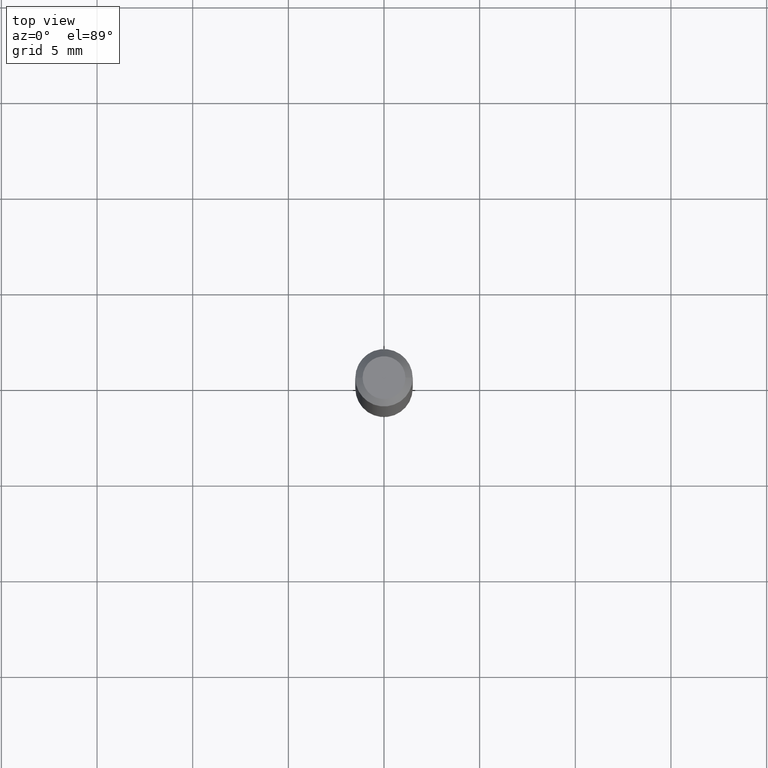
[diagram: clean part render]
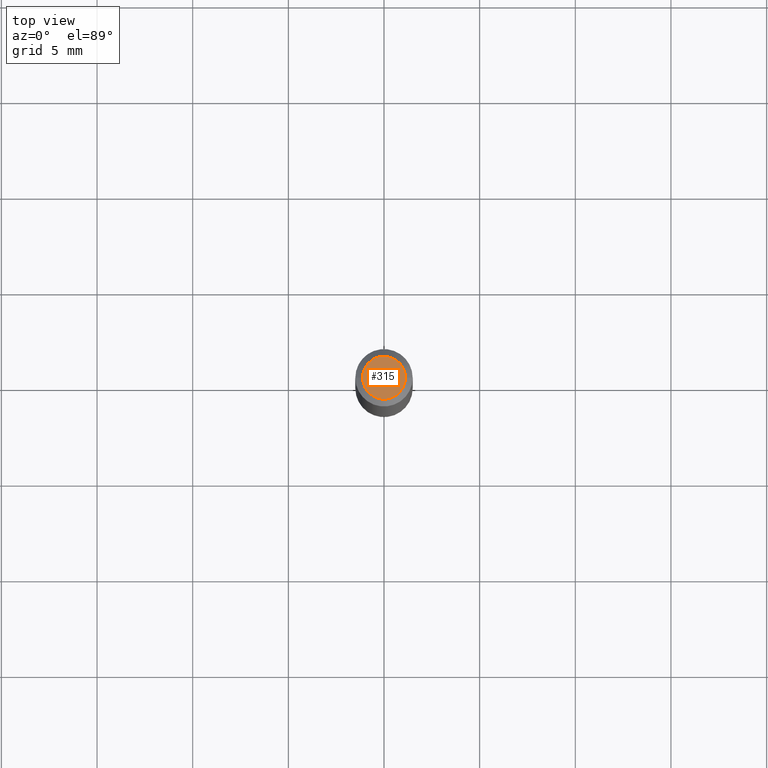
[diagram: same view with one face highlighted and labeled with its STEP entity id]
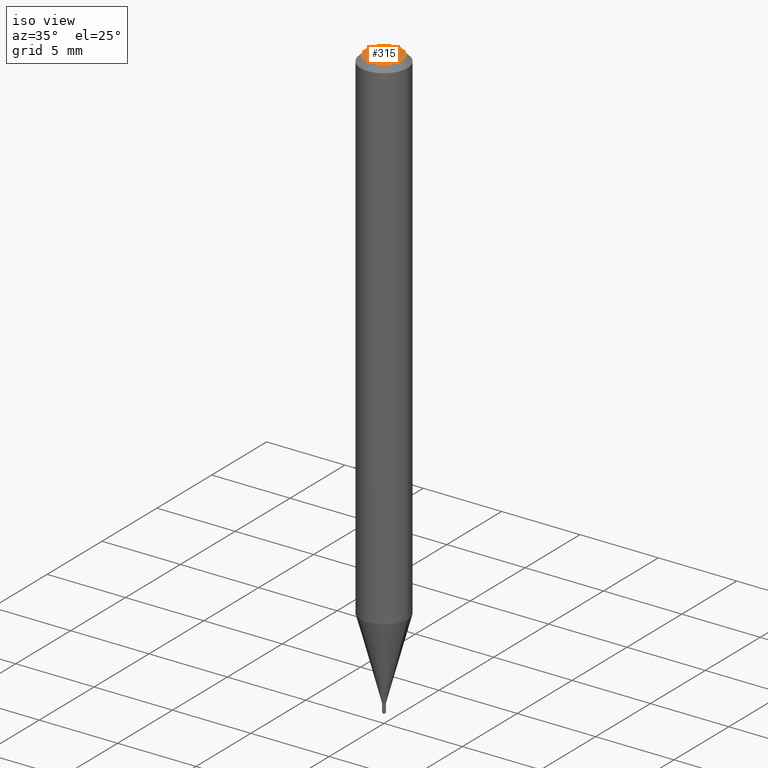
[diagram: same view with one face highlighted and labeled with its STEP entity id]
A machine part, top view. The second image highlights one B-rep face of the part: STEP entity #315.
A second angle (iso view) of the same face is appended — the face is thin or edge-on in the first view.
In plain terms, the highlighted planar face has unit normal (0, -0, -1).
Its self-contained STEP definition (entity closure, byte-faithful):
#27 = CARTESIAN_POINT ( 'NONE',  ( 1.968655146103496235E-45, -2.810717800960375713E-31, -8.050215734195126909E-17 ) ) ;
#47 = DIRECTION ( 'NONE',  ( 1.000000000000000000, -6.982962677686265922E-15, 4.888540261209747396E-29 ) ) ;
#49 = PLANE ( 'NONE',  #377 ) ;
#166 = VERTEX_POINT ( 'NONE', #312 ) ;
#187 = DIRECTION ( 'NONE',  ( -2.445468806185136597E-29, 3.491481338843145583E-15, 1.000000000000000000 ) ) ;
#191 = EDGE_CURVE ( 'NONE', #462, #166, #309, .T. ) ;
#211 = DIRECTION ( 'NONE',  ( 2.438088387897960049E-29, -3.491481338843145188E-15, -1.000000000000000000 ) ) ;
#222 = FACE_OUTER_BOUND ( 'NONE', #489, .T. ) ;
#252 = ORIENTED_EDGE ( 'NONE', *, *, #290, .T. ) ;
#275 = DIRECTION ( 'NONE',  ( 1.000000000000000000, -6.982962677686265922E-15, 4.888540261209747396E-29 ) ) ;
#280 = CARTESIAN_POINT ( 'NONE',  ( 0.04404999999999999888, -3.798447818264463530E-16, -8.050215734194887786E-17 ) ) ;
#290 = EDGE_CURVE ( 'NONE', #166, #462, #507, .T. ) ;
#302 = CARTESIAN_POINT ( 'NONE',  ( 3.075995059520799729E-16, 0.04404999999999999888, -1.940508316470162065E-16 ) ) ;
#309 = CIRCLE ( 'NONE', #461, 0.04404999999999999888 ) ;
#312 = CARTESIAN_POINT ( 'NONE',  ( -0.04404999999999999888, 3.337856159934031674E-16, -8.050215734195352474E-17 ) ) ;
#315 = ADVANCED_FACE ( 'NONE', ( #222 ), #49, .F. ) ;
#377 = AXIS2_PLACEMENT_3D ( 'NONE', #302, #211, #390 ) ;
#390 = DIRECTION ( 'NONE',  ( -1.000000000000000000, 6.982962677686265922E-15, -4.876176775795935793E-29 ) ) ;
#400 = CARTESIAN_POINT ( 'NONE',  ( 1.968655146103496235E-45, -2.810717800960375713E-31, -8.050215734195126909E-17 ) ) ;
#411 = ORIENTED_EDGE ( 'NONE', *, *, #191, .T. ) ;
#412 = AXIS2_PLACEMENT_3D ( 'NONE', #400, #453, #47 ) ;
#453 = DIRECTION ( 'NONE',  ( -2.445468806185136597E-29, 3.491481338843145583E-15, 1.000000000000000000 ) ) ;
#461 = AXIS2_PLACEMENT_3D ( 'NONE', #27, #187, #275 ) ;
#462 = VERTEX_POINT ( 'NONE', #280 ) ;
#489 = EDGE_LOOP ( 'NONE', ( #252, #411 ) ) ;
#507 = CIRCLE ( 'NONE', #412, 0.04404999999999999888 ) ;